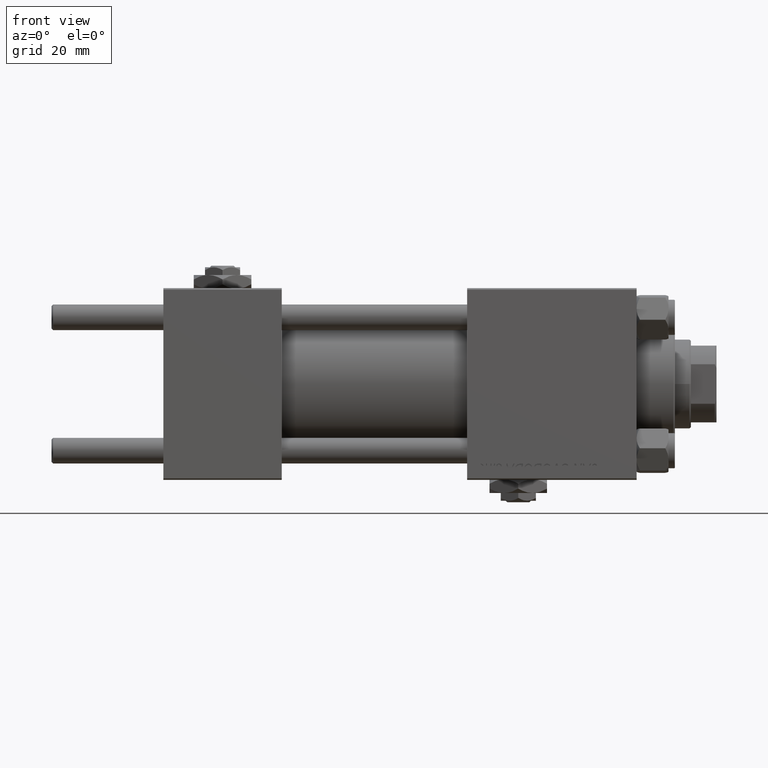
[diagram: clean part render]
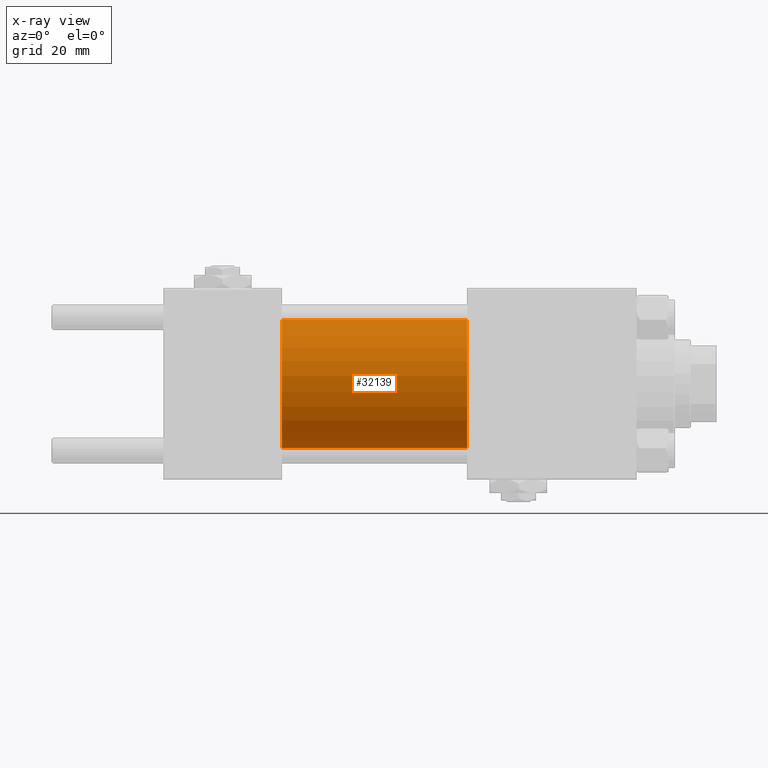
[diagram: x-ray — body ghosted, one internal face saturated and labeled with its STEP entity id]
A machine part, front view, then the same camera in x-ray: the body is ghosted and one INTERNAL B-rep face — a face not visible from any outside direction — is saturated and labeled: STEP entity #32139.
In plain terms, the highlighted cylindrical surface (partial cylindrical patch) has radius 20 mm, axis along (-1, -0, -0).
Its self-contained STEP definition (entity closure, byte-faithful):
#852 = CARTESIAN_POINT ( 'NONE',  ( 95.00000000000000000, 2.449293598294706119E-15, -20.00000000000000000 ) ) ;
#2074 = DIRECTION ( 'NONE',  ( 1.000000000000000000, 0.000000000000000000, 0.000000000000000000 ) ) ;
#2512 = CARTESIAN_POINT ( 'NONE',  ( 95.00000000000000000, 2.449293598294706119E-15, -20.00000000000000000 ) ) ;
#2565 = ORIENTED_EDGE ( 'NONE', *, *, #38402, .T. ) ;
#6132 = ORIENTED_EDGE ( 'NONE', *, *, #20129, .F. ) ;
#7370 = CARTESIAN_POINT ( 'NONE',  ( 95.00000000000000000, 0.000000000000000000, 20.00000000000000000 ) ) ;
#7398 = VERTEX_POINT ( 'NONE', #39315 ) ;
#10205 = CARTESIAN_POINT ( 'NONE',  ( 95.00000000000000000, 0.000000000000000000, 0.000000000000000000 ) ) ;
#10959 = CYLINDRICAL_SURFACE ( 'NONE', #50896, 20.00000000000000000 ) ;
#11168 = ORIENTED_EDGE ( 'NONE', *, *, #45910, .F. ) ;
#11398 = CARTESIAN_POINT ( 'NONE',  ( 95.00000000000000000, 0.000000000000000000, 0.000000000000000000 ) ) ;
#13435 = DIRECTION ( 'NONE',  ( -1.000000000000000000, -0.000000000000000000, -0.000000000000000000 ) ) ;
#13770 = VERTEX_POINT ( 'NONE', #2512 ) ;
#13981 = CARTESIAN_POINT ( 'NONE',  ( 37.00000000000000000, 0.000000000000000000, 20.00000000000000000 ) ) ;
#14098 = AXIS2_PLACEMENT_3D ( 'NONE', #11398, #50705, #26973 ) ;
#15205 = CIRCLE ( 'NONE', #17757, 20.00000000000000000 ) ;
#17757 = AXIS2_PLACEMENT_3D ( 'NONE', #25306, #2074, #49021 ) ;
#19668 = ORIENTED_EDGE ( 'NONE', *, *, #31523, .T. ) ;
#20129 = EDGE_CURVE ( 'NONE', #29745, #32653, #15205, .T. ) ;
#22410 = VECTOR ( 'NONE', #13435, 1000.000000000000000 ) ;
#25306 = CARTESIAN_POINT ( 'NONE',  ( 37.00000000000000000, 0.000000000000000000, 0.000000000000000000 ) ) ;
#26541 = FACE_OUTER_BOUND ( 'NONE', #47928, .T. ) ;
#26973 = DIRECTION ( 'NONE',  ( 0.000000000000000000, 0.000000000000000000, -1.000000000000000000 ) ) ;
#28276 = LINE ( 'NONE', #852, #42421 ) ;
#29745 = VERTEX_POINT ( 'NONE', #13981 ) ;
#30684 = CARTESIAN_POINT ( 'NONE',  ( 37.00000000000000000, 2.449293598294706119E-15, -20.00000000000000000 ) ) ;
#31523 = EDGE_CURVE ( 'NONE', #13770, #32653, #28276, .T. ) ;
#32139 = ADVANCED_FACE ( 'NONE', ( #26541 ), #10959, .F. ) ;
#32653 = VERTEX_POINT ( 'NONE', #30684 ) ;
#36435 = DIRECTION ( 'NONE',  ( -1.000000000000000000, -0.000000000000000000, -0.000000000000000000 ) ) ;
#38402 = EDGE_CURVE ( 'NONE', #7398, #13770, #45171, .T. ) ;
#39152 = DIRECTION ( 'NONE',  ( 0.000000000000000000, 0.000000000000000000, 1.000000000000000000 ) ) ;
#39315 = CARTESIAN_POINT ( 'NONE',  ( 95.00000000000000000, 0.000000000000000000, 20.00000000000000000 ) ) ;
#42421 = VECTOR ( 'NONE', #36435, 1000.000000000000000 ) ;
#42607 = DIRECTION ( 'NONE',  ( -1.000000000000000000, -0.000000000000000000, -0.000000000000000000 ) ) ;
#45171 = CIRCLE ( 'NONE', #14098, 20.00000000000000000 ) ;
#45910 = EDGE_CURVE ( 'NONE', #7398, #29745, #47432, .T. ) ;
#47432 = LINE ( 'NONE', #7370, #22410 ) ;
#47928 = EDGE_LOOP ( 'NONE', ( #2565, #19668, #6132, #11168 ) ) ;
#49021 = DIRECTION ( 'NONE',  ( 0.000000000000000000, 0.000000000000000000, -1.000000000000000000 ) ) ;
#50705 = DIRECTION ( 'NONE',  ( 1.000000000000000000, 0.000000000000000000, 0.000000000000000000 ) ) ;
#50896 = AXIS2_PLACEMENT_3D ( 'NONE', #10205, #42607, #39152 ) ;